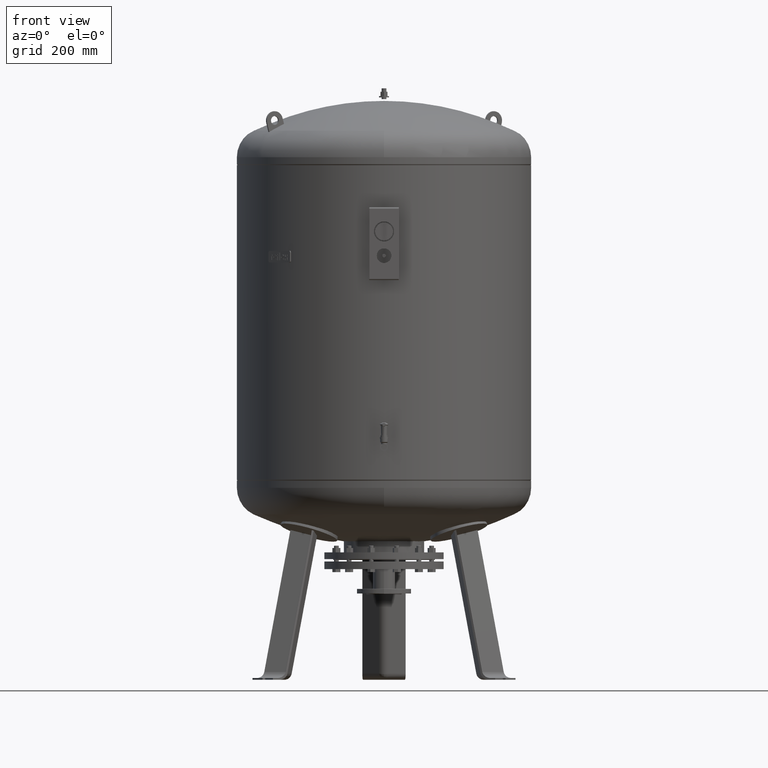
[diagram: clean part render]
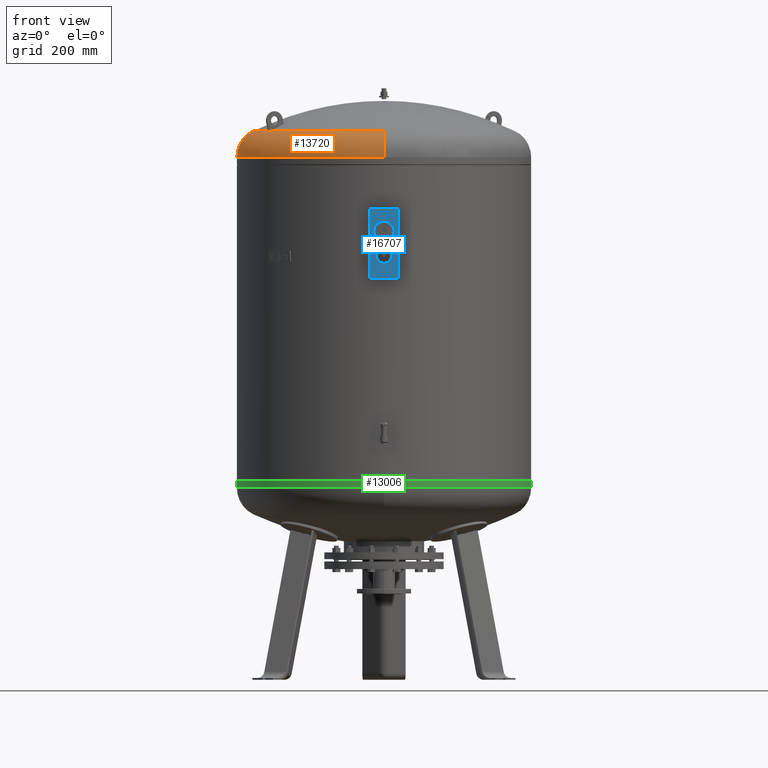
[diagram: same view with three faces highlighted in distinct colors, each labeled with its STEP entity id]
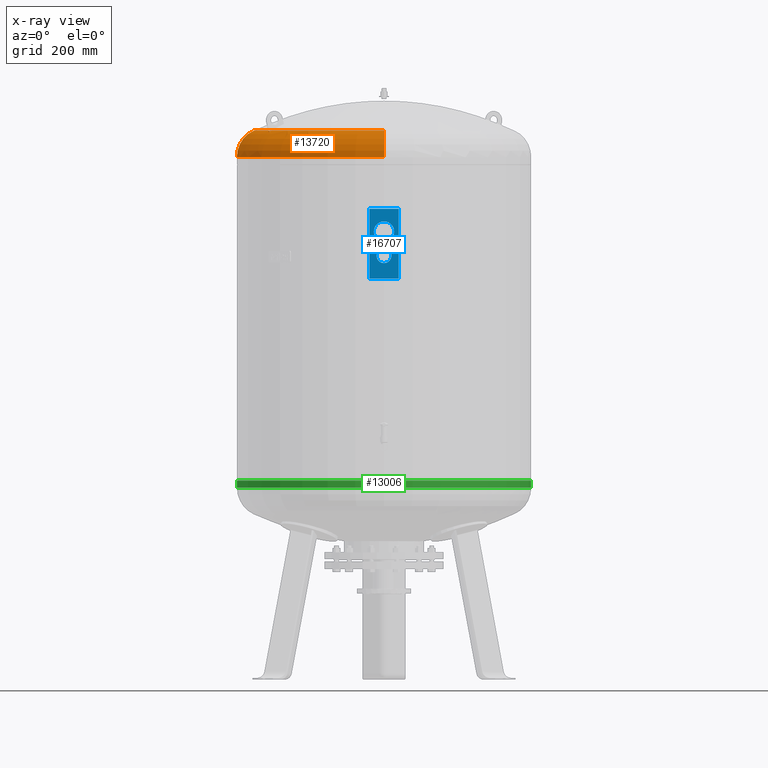
[diagram: x-ray of the same camera — body ghosted, the three highlighted faces saturated]
A machine part, front view with three faces highlighted in distinct colors.
The next image is the same camera in x-ray (body ghosted, the three faces saturated) — at least one of them is partly hidden behind the body in this view.
Their STEP definitions:

[orange] entity #13720 — the highlighted toroidal blend (fillet) surface has major radius 399.4 mm and minor (blend) radius 100.6 mm.
#13261=CARTESIAN_POINT('',(-500.0,2.569315E-014,1775.544644927280400));
#13262=VERTEX_POINT('',#13261);
#13269=CARTESIAN_POINT('',(3.753887E-014,499.999999999999940,1775.544644927280400));
#13270=VERTEX_POINT('',#13269);
#13271=CARTESIAN_POINT('',(2.260647E-015,-3.553717E-014,1775.544644927280400));
#13272=DIRECTION('',(0.0,0.0,-1.0));
#13273=DIRECTION('',(1.0,0.0,0.0));
#13274=AXIS2_PLACEMENT_3D('',#13271,#13272,#13273);
#13275=CIRCLE('',#13274,500.0);
#13276=EDGE_CURVE('',#13262,#13270,#13275,.T.);
#13356=CARTESIAN_POINT('',(-2.369145E-014,-500.000000000000060,1775.544644927280400));
#13357=VERTEX_POINT('',#13356);
#13358=CARTESIAN_POINT('',(-2.474646E-014,-443.777777777777600,1865.827383252533800));
#13359=VERTEX_POINT('',#13358);
#13360=CARTESIAN_POINT('',(-2.369145E-014,-399.399999999999980,1775.544644927280400));
#13361=DIRECTION('',(-1.0,0.0,0.0));
#13362=DIRECTION('',(0.0,-1.0,0.0));
#13363=AXIS2_PLACEMENT_3D('',#13360,#13361,#13362);
#13364=CIRCLE('',#13363,100.600000000000010);
#13365=EDGE_CURVE('',#13357,#13359,#13364,.T.);
#13375=CARTESIAN_POINT('',(2.959885E-014,443.777777777777600,1865.827383252533800));
#13376=VERTEX_POINT('',#13375);
#13377=CARTESIAN_POINT('',(2.521933E-014,399.399999999999860,1775.544644927280400));
#13378=DIRECTION('',(1.0,0.0,0.0));
#13379=DIRECTION('',(0.0,1.0,0.0));
#13380=AXIS2_PLACEMENT_3D('',#13377,#13378,#13379);
#13381=CIRCLE('',#13380,100.600000000000010);
#13382=EDGE_CURVE('',#13270,#13376,#13381,.T.);
#13488=CARTESIAN_POINT('',(-382.814047410493060,-224.481894937162560,1865.827383252533800));
#13489=VERTEX_POINT('',#13488);
#13490=CARTESIAN_POINT('',(-389.830975236114630,-228.533120106169180,1861.371241859355700));
#13491=VERTEX_POINT('',#13490);
#13492=CARTESIAN_POINT('',(-382.814047410493060,-224.481894937162560,1865.827383252533800));
#13493=CARTESIAN_POINT('',(-383.639352309694170,-224.958384942879830,1865.358964044102800));
#13494=CARTESIAN_POINT('',(-384.465875380145410,-225.435578260096290,1864.871089830497800));
#13495=CARTESIAN_POINT('',(-386.558700313612230,-226.643871298800120,1863.585884909508400));
#13496=CARTESIAN_POINT('',(-387.823023543382530,-227.373828655850640,1862.762865036489300));
#13497=CARTESIAN_POINT('',(-389.327412684914410,-228.242388131680000,1861.724754307438600));
#13498=CARTESIAN_POINT('',(-389.579482540164630,-228.387920730463240,1861.548806910300500));
#13499=CARTESIAN_POINT('',(-389.830975236114630,-228.533120106169180,1861.371241859355700));
#13500=B_SPLINE_CURVE_WITH_KNOTS('',3,(#13492,#13493,#13494,#13495,#13496,#13497,#13498,#13499),.UNSPECIFIED.,.F.,.U.,(4,2,2,4),(490.490460209288130,493.520523970825020,498.176350640228350,499.115750118992540),.UNSPECIFIED.);
#13501=EDGE_CURVE('',#13489,#13491,#13500,.T.);
#13603=CARTESIAN_POINT('',(-392.830975236114630,-223.336967683462570,1861.371241859355700));
#13604=VERTEX_POINT('',#13603);
#13605=CARTESIAN_POINT('',(-389.830975236114630,-228.533120106169180,1861.371241859355700));
#13606=CARTESIAN_POINT('',(-390.333307968772260,-227.664983484217170,1861.374723691362500));
#13607=CARTESIAN_POINT('',(-390.833741791658670,-226.799162381117950,1861.376448557724200));
#13608=CARTESIAN_POINT('',(-391.332224433285660,-225.935765119128830,1861.376448557724200));
#13609=CARTESIAN_POINT('',(-391.830707074909750,-225.072367857144680,1861.376448557724200));
#13610=CARTESIAN_POINT('',(-392.330313233880300,-224.206068902067500,1861.374723691362300));
#13611=CARTESIAN_POINT('',(-392.830975236114630,-223.336967683462570,1861.371241859355700));
#13612=B_SPLINE_CURVE_WITH_KNOTS('',3,(#13605,#13606,#13607,#13608,#13609,#13610,#13611),.UNSPECIFIED.,.F.,.U.,(4,3,4),(-2.990895849762056,0.0,2.990895849744776),.UNSPECIFIED.);
#13613=EDGE_CURVE('',#13491,#13604,#13612,.T.);
#13638=CARTESIAN_POINT('',(-385.814047410493120,-219.285742514455960,1865.827383252533800));
#13639=VERTEX_POINT('',#13638);
#13640=CARTESIAN_POINT('',(-392.830975236114630,-223.336967683462570,1861.371241859355700));
#13641=CARTESIAN_POINT('',(-392.579482540164690,-223.191768307756660,1861.548806910300300));
#13642=CARTESIAN_POINT('',(-392.327412684914520,-223.046235708973430,1861.724754307438600));
#13643=CARTESIAN_POINT('',(-390.823023543382700,-222.177676233144100,1862.762865036489300));
#13644=CARTESIAN_POINT('',(-389.558700313612460,-221.447718876093570,1863.585884909508400));
#13645=CARTESIAN_POINT('',(-387.465875380145580,-220.239425837389750,1864.871089830497800));
#13646=CARTESIAN_POINT('',(-386.639352309694290,-219.762232520173260,1865.358964044102800));
#13647=CARTESIAN_POINT('',(-385.814047410493120,-219.285742514455960,1865.827383252533800));
#13648=B_SPLINE_CURVE_WITH_KNOTS('',3,(#13640,#13641,#13642,#13643,#13644,#13645,#13646,#13647),.UNSPECIFIED.,.F.,.U.,(4,2,2,4),(96.832424772951825,97.771824251715969,102.427650921119290,105.457714682656370),.UNSPECIFIED.);
#13649=EDGE_CURVE('',#13604,#13639,#13648,.T.);
#13686=CARTESIAN_POINT('',(-2.369145E-014,-3.553717E-014,1775.544644927280400));
#13687=DIRECTION('',(1.168563E-017,-1.836970E-016,-1.0));
#13688=DIRECTION('',(0.0,-1.0,0.0));
#13689=AXIS2_PLACEMENT_3D('',#13686,#13687,#13688);
#13690=TOROIDAL_SURFACE('',#13689,399.399999999999920,100.600000000000010);
#13691=ORIENTED_EDGE('',*,*,#13365,.T.);
#13692=CARTESIAN_POINT('',(1.205637E-015,-1.895250E-014,1865.827383252533800));
#13693=DIRECTION('',(0.0,0.0,-1.0));
#13694=DIRECTION('',(1.0,0.0,0.0));
#13695=AXIS2_PLACEMENT_3D('',#13692,#13693,#13694);
#13696=CIRCLE('',#13695,443.777777777777600);
#13697=EDGE_CURVE('',#13359,#13489,#13696,.T.);
#13698=ORIENTED_EDGE('',*,*,#13697,.T.);
#13699=ORIENTED_EDGE('',*,*,#13501,.T.);
#13700=ORIENTED_EDGE('',*,*,#13613,.T.);
#13701=ORIENTED_EDGE('',*,*,#13649,.T.);
#13702=CARTESIAN_POINT('',(1.205637E-015,-1.895250E-014,1865.827383252533800));
#13703=DIRECTION('',(0.0,0.0,-1.0));
#13704=DIRECTION('',(1.0,0.0,0.0));
#13705=AXIS2_PLACEMENT_3D('',#13702,#13703,#13704);
#13706=CIRCLE('',#13705,443.777777777777600);
#13707=EDGE_CURVE('',#13639,#13376,#13706,.T.);
#13708=ORIENTED_EDGE('',*,*,#13707,.T.);
#13709=ORIENTED_EDGE('',*,*,#13382,.F.);
#13710=ORIENTED_EDGE('',*,*,#13276,.F.);
#13711=CARTESIAN_POINT('',(2.260647E-015,-3.553717E-014,1775.544644927280400));
#13712=DIRECTION('',(0.0,0.0,-1.0));
#13713=DIRECTION('',(1.0,0.0,0.0));
#13714=AXIS2_PLACEMENT_3D('',#13711,#13712,#13713);
#13715=CIRCLE('',#13714,500.0);
#13716=EDGE_CURVE('',#13357,#13262,#13715,.T.);
#13717=ORIENTED_EDGE('',*,*,#13716,.F.);
#13718=EDGE_LOOP('',(#13691,#13698,#13699,#13700,#13701,#13708,#13709,#13710,#13717));
#13719=FACE_OUTER_BOUND('',#13718,.T.);
#13720=ADVANCED_FACE('',(#13719),#13690,.T.);

[blue] entity #16707 — the highlighted planar face has unit normal (0, -1, 0).
#16209=CARTESIAN_POINT('',(-34.500000000000028,-566.0,1522.833333333333300));
#16210=VERTEX_POINT('',#16209);
#16226=CARTESIAN_POINT('',(34.499999999999972,-566.0,1522.833333333333300));
#16227=VERTEX_POINT('',#16226);
#16234=CARTESIAN_POINT('',(-2.724839E-014,-566.0,1522.833333333333300));
#16235=DIRECTION('',(0.0,1.0,0.0));
#16236=DIRECTION('',(-1.0,0.0,0.0));
#16237=AXIS2_PLACEMENT_3D('',#16234,#16235,#16236);
#16238=CIRCLE('',#16237,34.500000000000000);
#16239=EDGE_CURVE('',#16210,#16227,#16238,.T.);
#16251=CARTESIAN_POINT('',(-25.000000000000011,-566.0,1440.500000000000000));
#16252=VERTEX_POINT('',#16251);
#16268=CARTESIAN_POINT('',(24.999999999999989,-566.0,1440.500000000000000));
#16269=VERTEX_POINT('',#16268);
#16276=CARTESIAN_POINT('',(-1.212400E-014,-566.0,1440.500000000000000));
#16277=DIRECTION('',(0.0,1.0,0.0));
#16278=DIRECTION('',(-1.0,0.0,0.0));
#16279=AXIS2_PLACEMENT_3D('',#16276,#16277,#16278);
#16280=CIRCLE('',#16279,25.0);
#16281=EDGE_CURVE('',#16252,#16269,#16280,.T.);
#16292=CARTESIAN_POINT('',(-1.212400E-014,-566.0,1440.500000000000000));
#16293=DIRECTION('',(0.0,1.0,0.0));
#16294=DIRECTION('',(-1.0,0.0,0.0));
#16295=AXIS2_PLACEMENT_3D('',#16292,#16293,#16294);
#16296=CIRCLE('',#16295,25.0);
#16297=EDGE_CURVE('',#16269,#16252,#16296,.T.);
#16316=CARTESIAN_POINT('',(-2.724839E-014,-566.0,1522.833333333333300));
#16317=DIRECTION('',(0.0,1.0,0.0));
#16318=DIRECTION('',(-1.0,0.0,0.0));
#16319=AXIS2_PLACEMENT_3D('',#16316,#16317,#16318);
#16320=CIRCLE('',#16319,34.500000000000000);
#16321=EDGE_CURVE('',#16227,#16210,#16320,.T.);
#16341=CARTESIAN_POINT('',(50.0,-566.0,1363.166666666666500));
#16342=VERTEX_POINT('',#16341);
#16424=CARTESIAN_POINT('',(49.999999999999957,-566.0,1600.166666666666700));
#16425=VERTEX_POINT('',#16424);
#16433=CARTESIAN_POINT('',(50.0,-566.0,1363.166666666666500));
#16434=DIRECTION('',(0.0,0.0,1.0));
#16435=VECTOR('',#16434,237.000000000000230);
#16436=LINE('',#16433,#16435);
#16437=EDGE_CURVE('',#16342,#16425,#16436,.T.);
#16656=CARTESIAN_POINT('',(-50.000000000000043,-566.0,1600.166666666666700));
#16657=VERTEX_POINT('',#16656);
#16665=CARTESIAN_POINT('',(49.999999999999957,-566.0,1600.166666666666700));
#16666=DIRECTION('',(-1.0,0.0,0.0));
#16667=VECTOR('',#16666,100.0);
#16668=LINE('',#16665,#16667);
#16669=EDGE_CURVE('',#16425,#16657,#16668,.T.);
#16676=CARTESIAN_POINT('',(-4.145429E-014,-566.0,1600.166666666666700));
#16677=DIRECTION('',(0.0,-1.0,0.0));
#16678=DIRECTION('',(1.0,0.0,0.0));
#16679=AXIS2_PLACEMENT_3D('',#16676,#16677,#16678);
#16680=PLANE('',#16679);
#16681=CARTESIAN_POINT('',(-50.0,-566.0,1363.166666666666500));
#16682=VERTEX_POINT('',#16681);
#16683=CARTESIAN_POINT('',(-50.000000000000043,-566.0,1600.166666666666700));
#16684=DIRECTION('',(0.0,0.0,-1.0));
#16685=VECTOR('',#16684,237.000000000000230);
#16686=LINE('',#16683,#16685);
#16687=EDGE_CURVE('',#16657,#16682,#16686,.T.);
#16688=ORIENTED_EDGE('',*,*,#16687,.T.);
#16689=CARTESIAN_POINT('',(50.0,-566.0,1363.166666666666500));
#16690=DIRECTION('',(-1.0,0.0,0.0));
#16691=VECTOR('',#16690,100.0);
#16692=LINE('',#16689,#16691);
#16693=EDGE_CURVE('',#16342,#16682,#16692,.T.);
#16694=ORIENTED_EDGE('',*,*,#16693,.F.);
#16695=ORIENTED_EDGE('',*,*,#16437,.T.);
#16696=ORIENTED_EDGE('',*,*,#16669,.T.);
#16697=EDGE_LOOP('',(#16688,#16694,#16695,#16696));
#16698=FACE_OUTER_BOUND('',#16697,.T.);
#16699=ORIENTED_EDGE('',*,*,#16297,.T.);
#16700=ORIENTED_EDGE('',*,*,#16281,.T.);
#16701=EDGE_LOOP('',(#16699,#16700));
#16702=FACE_BOUND('',#16701,.T.);
#16703=ORIENTED_EDGE('',*,*,#16321,.T.);
#16704=ORIENTED_EDGE('',*,*,#16239,.T.);
#16705=EDGE_LOOP('',(#16703,#16704));
#16706=FACE_BOUND('',#16705,.T.);
#16707=ADVANCED_FACE('',(#16698,#16702,#16706),#16680,.T.);

[green] entity #13006 — the highlighted cylindrical surface (partial cylindrical patch) has radius 500 mm, axis along (-0, -0, 1).
#12854=CARTESIAN_POINT('',(-500.0,-3.995410E-014,676.500000000000000));
#12855=VERTEX_POINT('',#12854);
#12856=CARTESIAN_POINT('',(-500.0,-3.553717E-014,652.455355072719390));
#12857=VERTEX_POINT('',#12856);
#12858=CARTESIAN_POINT('',(-500.0,-3.995410E-014,676.500000000000000));
#12859=DIRECTION('',(0.0,0.0,-1.0));
#12860=VECTOR('',#12859,24.044644927280615);
#12861=LINE('',#12858,#12860);
#12862=EDGE_CURVE('',#12855,#12857,#12861,.T.);
#12864=CARTESIAN_POINT('',(500.0,2.127622E-014,676.500000000000110));
#12865=VERTEX_POINT('',#12864);
#12873=CARTESIAN_POINT('',(500.0,2.569315E-014,652.455355072719500));
#12874=VERTEX_POINT('',#12873);
#12875=CARTESIAN_POINT('',(500.0,2.127622E-014,676.500000000000110));
#12876=DIRECTION('',(0.0,0.0,-1.0));
#12877=VECTOR('',#12876,24.044644927280615);
#12878=LINE('',#12875,#12877);
#12879=EDGE_CURVE('',#12865,#12874,#12878,.T.);
#12905=CARTESIAN_POINT('',(3.381269E-030,-500.000000000000060,652.455355072719390));
#12906=VERTEX_POINT('',#12905);
#12916=CARTESIAN_POINT('',(-2.595210E-014,-3.553717E-014,652.455355072719500));
#12917=DIRECTION('',(0.0,0.0,1.0));
#12918=DIRECTION('',(-1.0,0.0,0.0));
#12919=AXIS2_PLACEMENT_3D('',#12916,#12917,#12918);
#12920=CIRCLE('',#12919,500.0);
#12921=EDGE_CURVE('',#12857,#12906,#12920,.T.);
#12978=CARTESIAN_POINT('',(-2.595210E-014,-3.553717E-014,652.455355072719500));
#12979=DIRECTION('',(0.0,0.0,1.0));
#12980=DIRECTION('',(-1.0,0.0,0.0));
#12981=AXIS2_PLACEMENT_3D('',#12978,#12979,#12980);
#12982=CIRCLE('',#12981,500.0);
#12983=EDGE_CURVE('',#12906,#12874,#12982,.T.);
#12988=CARTESIAN_POINT('',(-2.756489E-014,-3.774564E-014,664.477677536359810));
#12989=DIRECTION('',(-1.341503E-016,-1.836970E-016,1.0));
#12990=DIRECTION('',(-1.0,0.0,0.0));
#12991=AXIS2_PLACEMENT_3D('',#12988,#12989,#12990);
#12992=CYLINDRICAL_SURFACE('',#12991,500.0);
#12993=ORIENTED_EDGE('',*,*,#12862,.T.);
#12994=ORIENTED_EDGE('',*,*,#12921,.T.);
#12995=ORIENTED_EDGE('',*,*,#12983,.T.);
#12996=ORIENTED_EDGE('',*,*,#12879,.F.);
#12997=CARTESIAN_POINT('',(-2.917769E-014,-3.995410E-014,676.500000000000000));
#12998=DIRECTION('',(0.0,0.0,1.0));
#12999=DIRECTION('',(-1.0,0.0,0.0));
#13000=AXIS2_PLACEMENT_3D('',#12997,#12998,#12999);
#13001=CIRCLE('',#13000,500.0);
#13002=EDGE_CURVE('',#12855,#12865,#13001,.T.);
#13003=ORIENTED_EDGE('',*,*,#13002,.F.);
#13004=EDGE_LOOP('',(#12993,#12994,#12995,#12996,#13003));
#13005=FACE_OUTER_BOUND('',#13004,.T.);
#13006=ADVANCED_FACE('',(#13005),#12992,.T.);